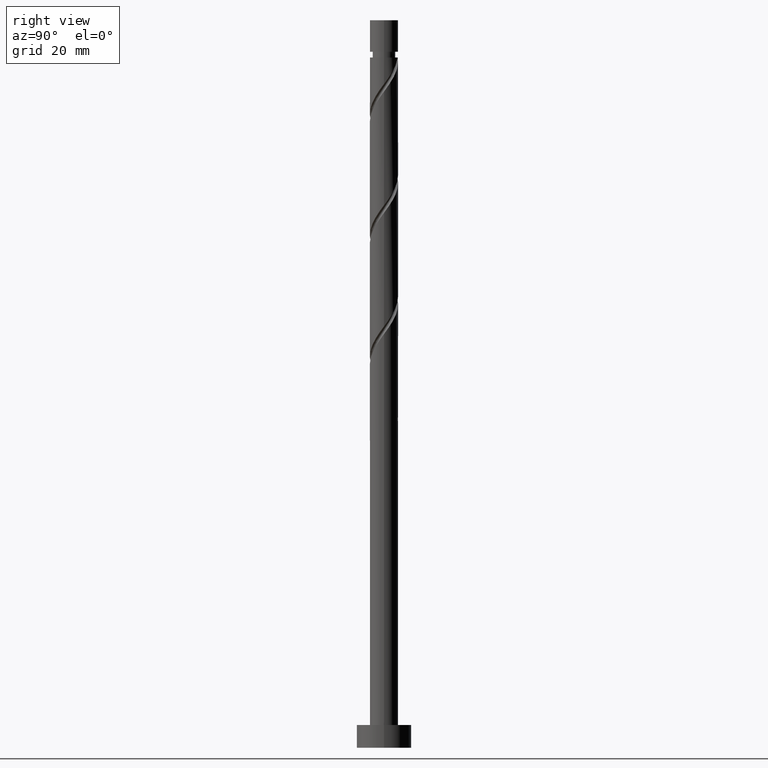
[diagram: clean part render]
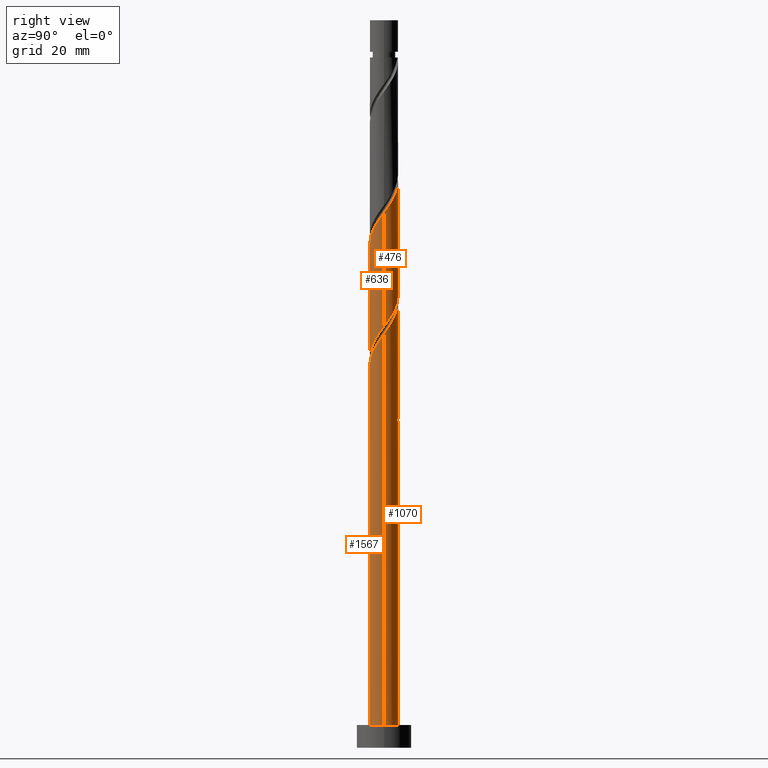
[diagram: same view with one multi-face feature highlighted, each face labeled with its STEP entity id]
A machine part, right view. The highlighted faces form ONE feature: a constant-radius fillet chain: 4 tangent blend faces with common blend radius 3.1 mm. The faces share edges in the B-rep.
Their STEP definitions:
[1] entity #1070 (Cylinder):
#4 = CARTESIAN_POINT ( 'NONE',  ( -3.100000000000003642, -2.213609464117462443E-15, 104.3171911729504444 ) ) ;
#27 = AXIS2_PLACEMENT_3D ( 'NONE', #893, #369, #646 ) ;
#34 = VERTEX_POINT ( 'NONE', #565 ) ;
#55 = EDGE_CURVE ( 'NONE', #904, #1299, #1140, .T. ) ;
#90 = ORIENTED_EDGE ( 'NONE', *, *, #981, .T. ) ;
#93 = DIRECTION ( 'NONE',  ( 1.000000000000000000, 0.000000000000000000, 0.000000000000000000 ) ) ;
#122 = CARTESIAN_POINT ( 'NONE',  ( -0.6168922110061045849, 3.038000000000004253, 71.83331231891800428 ) ) ;
#137 = ORIENTED_EDGE ( 'NONE', *, *, #1374, .F. ) ;
#163 = VERTEX_POINT ( 'NONE', #303 ) ;
#166 = CARTESIAN_POINT ( 'NONE',  ( -0.2639997657463936109, 3.088738273743154572, 73.04543353103920822 ) ) ;
#189 = CARTESIAN_POINT ( 'NONE',  ( -1.053690668162834632, 2.949304290322759314, 99.10603959164527055 ) ) ;
#212 = ORIENTED_EDGE ( 'NONE', *, *, #857, .F. ) ;
#228 = CARTESIAN_POINT ( 'NONE',  ( -1.447807249622134584, 2.741141033938534477, 99.71210019770589383 ) ) ;
#244 = CARTESIAN_POINT ( 'NONE',  ( -3.099999999999998757, 0.08920413222385151220, 79.22733546016732475 ) ) ;
#258 = CARTESIAN_POINT ( 'NONE',  ( -3.099999999999998757, 3.140932347734256892E-15, 79.34943346488556415 ) ) ;
#260 = VERTEX_POINT ( 'NONE', #1001 ) ;
#263 = CARTESIAN_POINT ( 'NONE',  ( -2.507195716031161759, 1.823175702315874558, 76.68179716740284846 ) ) ;
#285 = EDGE_LOOP ( 'NONE', ( #1529, #90, #321, #137, #1539, #1275, #1155, #212 ) ) ;
#289 = CARTESIAN_POINT ( 'NONE',  ( -1.123504051545180626, 2.889245341981458992, 74.25755474316044058 ) ) ;
#303 = CARTESIAN_POINT ( 'NONE',  ( 3.100000000000003642, 2.108911719192988068E-15, 90.98385783961710160 ) ) ;
#321 = ORIENTED_EDGE ( 'NONE', *, *, #1231, .T. ) ;
#332 = CARTESIAN_POINT ( 'NONE',  ( -2.480935279548630579, 1.911444469447290295, 101.5302820158876926 ) ) ;
#352 = CARTESIAN_POINT ( 'NONE',  ( 2.507195716031167976, 1.823175702315876334, 93.65149413709981729 ) ) ;
#369 = DIRECTION ( 'NONE',  ( 0.000000000000000000, -0.000000000000000000, -1.000000000000000000 ) ) ;
#406 = DIRECTION ( 'NONE',  ( -0.000000000000000000, -0.000000000000000000, -1.000000000000000000 ) ) ;
#438 = CARTESIAN_POINT ( 'NONE',  ( -2.699945692952827603, 1.523250883835457481, 102.1363426219482875 ) ) ;
#446 = VECTOR ( 'NONE', #406, 1000.000000000000000 ) ;
#449 = CARTESIAN_POINT ( 'NONE',  ( -3.019728287742894146, 0.7008859166835883503, 103.3484638340695199 ) ) ;
#461 = CARTESIAN_POINT ( 'NONE',  ( 3.100000000000004086, 0.08920413222384511454, 91.10595584433531258 ) ) ;
#522 = DIRECTION ( 'NONE',  ( -0.000000000000000000, -0.000000000000000000, -1.000000000000000000 ) ) ;
#540 =( BOUNDED_CURVE ( )  B_SPLINE_CURVE ( 2, ( #1210, #461, #1505, #1356, #713, #1605, #352, #1219, #1614, #958, #1105, #873, #968, #1345, #1388, #189, #228, #582, #1487, #332, #438, #851, #449, #1232, #729 ),
 .UNSPECIFIED., .F., .T. ) 
 B_SPLINE_CURVE_WITH_KNOTS ( ( 3, 2, 2, 2, 2, 2, 2, 2, 2, 2, 2, 2, 3 ),
 ( 0.1795252162417511899, 0.1818181818181817677, 0.1931818181818182323, 0.2045454545454545858, 0.2159090909090909394, 0.2272727272727272929, 0.2386363636363636465, 0.2500000000000000000, 0.2613636363636363535, 0.2727272727272727071, 0.2840909090909090606, 0.2954545454545454142, 0.3045252162417514397 ),
 .UNSPECIFIED. ) 
 CURVE ( )  GEOMETRIC_REPRESENTATION_ITEM ( )  RATIONAL_B_SPLINE_CURVE ( ( 0.9061101570135631222, 0.9072237824201452305, 0.9090909090909228274, 0.8998376744372251768, 0.9090909090909228274, 0.8998376744372251768, 0.9090909090909228274, 0.8998376744372251768, 0.9090909090909228274, 0.8998376744372251768, 0.9090909090909228274, 0.8998376744372251768, 0.9090909090909228274, 0.8998376744372251768, 0.9090909090909228274, 0.8998376744372251768, 0.9090909090909228274, 0.8998376744372251768, 0.9090909090909228274, 0.8998376744372251768, 0.9090909090909228274, 0.8998376744372251768, 0.9090909090909228274, 0.9017048011080025516, 0.9061101570135633443 ) ) 
 REPRESENTATION_ITEM ( '' )  );
#565 = CARTESIAN_POINT ( 'NONE',  ( -3.100000000000000089, 0.000000000000000000, 5.000000000000000000 ) ) ;
#570 = CARTESIAN_POINT ( 'NONE',  ( -2.918956106357024627, 1.135057298223623778, 76.07573656134222517 ) ) ;
#582 = CARTESIAN_POINT ( 'NONE',  ( -1.841923831081434093, 2.532977777554309640, 100.3181608037664887 ) ) ;
#638 = CARTESIAN_POINT ( 'NONE',  ( 0.6168922110061056951, 3.037999999999998924, 71.83331231891800428 ) ) ;
#646 = DIRECTION ( 'NONE',  ( -1.000000000000000000, 0.000000000000000000, 0.000000000000000000 ) ) ;
#649 = EDGE_CURVE ( 'NONE', #163, #962, #540, .T. ) ;
#682 = CARTESIAN_POINT ( 'NONE',  ( -1.891988720823648551, 2.455682935616096518, 75.46967595528161610 ) ) ;
#684 = LINE ( 'NONE', #807, #1261 ) ;
#692 = CARTESIAN_POINT ( 'NONE',  ( -2.161429555315031781, 2.222211123500800412, 74.25755474316044058 ) ) ;
#698 = CARTESIAN_POINT ( 'NONE',  ( -3.100000000000003642, -2.213609464117462443E-15, 77.65052450628378722 ) ) ;
#704 = CARTESIAN_POINT ( 'NONE',  ( -3.019728287742894146, 0.7008859166835883503, 76.68179716740284846 ) ) ;
#711 =( BOUNDED_CURVE ( )  B_SPLINE_CURVE ( 2, ( #1532, #244, #1272, #1413, #900, #774, #263, #780, #682, #1050, #289, #943, #166, #1574, #1311 ),
 .UNSPECIFIED., .F., .T. ) 
 B_SPLINE_CURVE_WITH_KNOTS ( ( 3, 2, 2, 2, 2, 2, 2, 3 ),
 ( 0.9295252162417513286, 0.9318181818181817677, 0.9431818181818182323, 0.9545454545454545858, 0.9659090909090909394, 0.9772727272727272929, 0.9886363636363636465, 1.000000000000000000 ),
 .UNSPECIFIED. ) 
 CURVE ( )  GEOMETRIC_REPRESENTATION_ITEM ( )  RATIONAL_B_SPLINE_CURVE ( ( 0.9061101570135575711, 0.9072237824201396794, 0.9090909090909171653, 0.8998376744372194036, 0.9090909090909171653, 0.8998376744372194036, 0.9090909090909171653, 0.8998376744372194036, 0.9090909090909171653, 0.8998376744372194036, 0.9090909090909171653, 0.8998376744372194036, 0.9090909090909171653, 0.8998376744372194036, 0.9090909090909171653 ) ) 
 REPRESENTATION_ITEM ( '' )  );
#713 = CARTESIAN_POINT ( 'NONE',  ( 2.919284625192895000, 1.042965616457419697, 92.43937292497859914 ) ) ;
#729 = CARTESIAN_POINT ( 'NONE',  ( -3.100000000000004086, -2.213609464117462838E-15, 104.3171911729504444 ) ) ;
#759 = CIRCLE ( 'NONE', #27, 3.100000000000000089 ) ;
#774 = CARTESIAN_POINT ( 'NONE',  ( -2.769328808163226796, 1.462695379553408781, 77.28785777346345753 ) ) ;
#780 = CARTESIAN_POINT ( 'NONE',  ( -2.245062623899099830, 2.183656025078340779, 76.07573656134222517 ) ) ;
#807 = CARTESIAN_POINT ( 'NONE',  ( 3.100000000000000089, 3.796405077356794918E-16, 160.0000000000000000 ) ) ;
#829 = FACE_OUTER_BOUND ( 'NONE', #285, .T. ) ;
#851 = CARTESIAN_POINT ( 'NONE',  ( -2.918956106357024627, 1.135057298223623778, 102.7424032280088966 ) ) ;
#857 = EDGE_CURVE ( 'NONE', #962, #884, #1519, .T. ) ;
#873 = CARTESIAN_POINT ( 'NONE',  ( 0.7080932853421649797, 3.050780837809070611, 96.68179716740283425 ) ) ;
#881 = CARTESIAN_POINT ( 'NONE',  ( 0.000000000000000000, 0.000000000000000000, 5.000000000000000000 ) ) ;
#884 = VERTEX_POINT ( 'NONE', #258 ) ;
#893 = CARTESIAN_POINT ( 'NONE',  ( 0.000000000000000000, 0.000000000000000000, 71.83331231891800428 ) ) ;
#896 = CARTESIAN_POINT ( 'NONE',  ( -3.100000000000000089, 0.000000000000000000, 160.0000000000000000 ) ) ;
#900 = CARTESIAN_POINT ( 'NONE',  ( -2.919284625192889671, 1.042965616457419253, 77.89391837952405240 ) ) ;
#904 = VERTEX_POINT ( 'NONE', #122 ) ;
#943 = CARTESIAN_POINT ( 'NONE',  ( -0.7080932853421633144, 3.050780837809067059, 73.65149413709981729 ) ) ;
#958 = CARTESIAN_POINT ( 'NONE',  ( 1.538914817748200381, 2.727709846153857143, 95.46967595528161610 ) ) ;
#962 = VERTEX_POINT ( 'NONE', #4 ) ;
#968 = CARTESIAN_POINT ( 'NONE',  ( 0.2639997657463947767, 3.088738273743159457, 97.28785777346347174 ) ) ;
#981 = EDGE_CURVE ( 'NONE', #163, #260, #684, .T. ) ;
#1001 = CARTESIAN_POINT ( 'NONE',  ( 3.100000000000000089, 3.796405077356794918E-16, 5.000000000000000000 ) ) ;
#1005 = CARTESIAN_POINT ( 'NONE',  ( -3.100000000000003642, -2.213609464117462443E-15, 77.65052450628378722 ) ) ;
#1026 = CARTESIAN_POINT ( 'NONE',  ( 0.000000000000000000, 0.000000000000000000, 160.0000000000000000 ) ) ;
#1050 = CARTESIAN_POINT ( 'NONE',  ( -1.538914817748199271, 2.727709846153853590, 74.86361534922103544 ) ) ;
#1069 = CIRCLE ( 'NONE', #1185, 3.100000000000000089 ) ;
#1070 = ADVANCED_FACE ( 'NONE', ( #829 ), #1577, .T. ) ;
#1090 = VECTOR ( 'NONE', #1417, 1000.000000000000000 ) ;
#1105 = CARTESIAN_POINT ( 'NONE',  ( 1.123504051545182847, 2.889245341981463433, 96.07573656134223938 ) ) ;
#1140 =( BOUNDED_CURVE ( )  B_SPLINE_CURVE ( 2, ( #1330, #1324, #1338, #1583, #692, #1194, #1205, #570, #704, #1188, #698 ),
 .UNSPECIFIED., .F., .T. ) 
 B_SPLINE_CURVE_WITH_KNOTS ( ( 3, 2, 2, 2, 2, 3 ),
 ( 0.000000000000000000, 0.01136363636363635354, 0.02272727272727270709, 0.03409090909090906063, 0.04545454545454541417, 0.05452521624175132864 ),
 .UNSPECIFIED. ) 
 CURVE ( )  GEOMETRIC_REPRESENTATION_ITEM ( )  RATIONAL_B_SPLINE_CURVE ( ( 0.9090909090909228274, 0.8998376744372251768, 0.9090909090909228274, 0.8998376744372251768, 0.9090909090909228274, 0.8998376744372251768, 0.9090909090909228274, 0.8998376744372251768, 0.9090909090909228274, 0.9017048011080026626, 0.9061101570135631222 ) ) 
 REPRESENTATION_ITEM ( '' )  );
#1155 = ORIENTED_EDGE ( 'NONE', *, *, #1465, .F. ) ;
#1170 = LINE ( 'NONE', #1558, #446 ) ;
#1185 = AXIS2_PLACEMENT_3D ( 'NONE', #881, #1504, #93 ) ;
#1188 = CARTESIAN_POINT ( 'NONE',  ( -3.100000000000004530, 0.3550396748938801639, 77.16456455331244513 ) ) ;
#1194 = CARTESIAN_POINT ( 'NONE',  ( -2.480935279548630579, 1.911444469447290295, 74.86361534922102123 ) ) ;
#1205 = CARTESIAN_POINT ( 'NONE',  ( -2.699945692952827603, 1.523250883835457481, 75.46967595528163031 ) ) ;
#1210 = CARTESIAN_POINT ( 'NONE',  ( 3.100000000000003642, 2.108911719192987674E-15, 90.98385783961710160 ) ) ;
#1219 = CARTESIAN_POINT ( 'NONE',  ( 2.245062623899103382, 2.183656025078341223, 94.25755474316041216 ) ) ;
#1231 = EDGE_CURVE ( 'NONE', #260, #34, #1069, .T. ) ;
#1232 = CARTESIAN_POINT ( 'NONE',  ( -3.100000000000005418, 0.3550396748938760005, 103.8312312199791450 ) ) ;
#1261 = VECTOR ( 'NONE', #522, 1000.000000000000000 ) ;
#1269 = VERTEX_POINT ( 'NONE', #638 ) ;
#1272 = CARTESIAN_POINT ( 'NONE',  ( -3.094870455675655663, 0.1782606591089396786, 79.10603959164527055 ) ) ;
#1275 = ORIENTED_EDGE ( 'NONE', *, *, #1455, .T. ) ;
#1299 = VERTEX_POINT ( 'NONE', #1005 ) ;
#1311 = CARTESIAN_POINT ( 'NONE',  ( 0.6168922110061056951, 3.037999999999998924, 71.83331231891801849 ) ) ;
#1324 = CARTESIAN_POINT ( 'NONE',  ( -1.053690668162834632, 2.949304290322759314, 72.43937292497864178 ) ) ;
#1330 = CARTESIAN_POINT ( 'NONE',  ( -0.6168922110061045849, 3.038000000000004253, 71.83331231891800428 ) ) ;
#1338 = CARTESIAN_POINT ( 'NONE',  ( -1.447807249622134584, 2.741141033938534477, 73.04543353103920822 ) ) ;
#1345 = CARTESIAN_POINT ( 'NONE',  ( -0.1800937538493752321, 3.126695709677248747, 97.89391837952408082 ) ) ;
#1356 = CARTESIAN_POINT ( 'NONE',  ( 3.069240442222557430, 0.6232358533614306140, 91.83331231891800428 ) ) ;
#1374 = EDGE_CURVE ( 'NONE', #1299, #34, #1170, .T. ) ;
#1388 = CARTESIAN_POINT ( 'NONE',  ( -0.6168922110061045849, 3.038000000000004253, 98.49997898558467568 ) ) ;
#1413 = CARTESIAN_POINT ( 'NONE',  ( -3.069240442222553433, 0.6232358533614308360, 78.49997898558464726 ) ) ;
#1417 = DIRECTION ( 'NONE',  ( -0.000000000000000000, -0.000000000000000000, -1.000000000000000000 ) ) ;
#1454 = DIRECTION ( 'NONE',  ( -1.000000000000000000, 0.000000000000000000, 0.000000000000000000 ) ) ;
#1455 = EDGE_CURVE ( 'NONE', #904, #1269, #759, .T. ) ;
#1465 = EDGE_CURVE ( 'NONE', #884, #1269, #711, .T. ) ;
#1487 = CARTESIAN_POINT ( 'NONE',  ( -2.161429555315031781, 2.222211123500800412, 100.9242214098271262 ) ) ;
#1504 = DIRECTION ( 'NONE',  ( 0.000000000000000000, 0.000000000000000000, 1.000000000000000000 ) ) ;
#1505 = CARTESIAN_POINT ( 'NONE',  ( 3.094870455675660548, 0.1782606591089387071, 91.22725171285738099 ) ) ;
#1519 = LINE ( 'NONE', #896, #1090 ) ;
#1529 = ORIENTED_EDGE ( 'NONE', *, *, #649, .F. ) ;
#1532 = CARTESIAN_POINT ( 'NONE',  ( -3.099999999999998757, 3.140932347734256892E-15, 79.34943346488556415 ) ) ;
#1539 = ORIENTED_EDGE ( 'NONE', *, *, #55, .F. ) ;
#1558 = CARTESIAN_POINT ( 'NONE',  ( -3.100000000000000089, 0.000000000000000000, 160.0000000000000000 ) ) ;
#1569 = DIRECTION ( 'NONE',  ( -0.000000000000000000, -0.000000000000000000, -1.000000000000000000 ) ) ;
#1574 = CARTESIAN_POINT ( 'NONE',  ( 0.1800937538493760093, 3.126695709677243862, 72.43937292497862757 ) ) ;
#1577 = CYLINDRICAL_SURFACE ( 'NONE', #1658, 3.100000000000000089 ) ;
#1583 = CARTESIAN_POINT ( 'NONE',  ( -1.841923831081434093, 2.532977777554309640, 73.65149413709980308 ) ) ;
#1605 = CARTESIAN_POINT ( 'NONE',  ( 2.769328808163231237, 1.462695379553409447, 93.04543353103920822 ) ) ;
#1614 = CARTESIAN_POINT ( 'NONE',  ( 1.891988720823650993, 2.455682935616100071, 94.86361534922104966 ) ) ;
#1658 = AXIS2_PLACEMENT_3D ( 'NONE', #1026, #1569, #1454 ) ;
[2] entity #1567 (Cylinder):
#34 = VERTEX_POINT ( 'NONE', #565 ) ;
#53 = AXIS2_PLACEMENT_3D ( 'NONE', #1223, #1489, #1081 ) ;
#142 = CARTESIAN_POINT ( 'NONE',  ( 2.918956106357024627, -1.135057298223622890, 89.40906989467561061 ) ) ;
#151 = CARTESIAN_POINT ( 'NONE',  ( 2.480935279548630135, -1.911444469447291183, 88.19694868255439246 ) ) ;
#152 =( BOUNDED_CURVE ( )  B_SPLINE_CURVE ( 2, ( #1344, #659, #792, #315, #1061, #934, #1315, #1044, #903, #1053, #284, #555, #410, #1552, #168, #1544, #926, #1290, #422, #151, #1439, #142, #400, #267, #1422 ),
 .UNSPECIFIED., .F., .T. ) 
 B_SPLINE_CURVE_WITH_KNOTS ( ( 3, 2, 2, 2, 2, 2, 2, 2, 2, 2, 2, 2, 3 ),
 ( 0.05452521624175132864, 0.05681818181818176772, 0.06818181818181823228, 0.07954545454545458583, 0.09090909090909093937, 0.1022727272727272929, 0.1136363636363636465, 0.1250000000000000000, 0.1363636363636363535, 0.1477272727272727071, 0.1590909090909090606, 0.1704545454545454142, 0.1795252162417511899 ),
 .UNSPECIFIED. ) 
 CURVE ( )  GEOMETRIC_REPRESENTATION_ITEM ( )  RATIONAL_B_SPLINE_CURVE ( ( 0.9061101570135631222, 0.9072237824201453416, 0.9090909090909228274, 0.8998376744372251768, 0.9090909090909228274, 0.8998376744372251768, 0.9090909090909228274, 0.8998376744372251768, 0.9090909090909228274, 0.8998376744372251768, 0.9090909090909228274, 0.8998376744372251768, 0.9090909090909228274, 0.8998376744372251768, 0.9090909090909228274, 0.8998376744372251768, 0.9090909090909228274, 0.8998376744372251768, 0.9090909090909228274, 0.8998376744372251768, 0.9090909090909228274, 0.8998376744372251768, 0.9090909090909228274, 0.9017048011080027736, 0.9061101570135631222 ) ) 
 REPRESENTATION_ITEM ( '' )  );
#163 = VERTEX_POINT ( 'NONE', #303 ) ;
#168 = CARTESIAN_POINT ( 'NONE',  ( 0.6168922110061050290, -3.038000000000004253, 85.16664565225133288 ) ) ;
#180 = CARTESIAN_POINT ( 'NONE',  ( 0.000000000000000000, 0.000000000000000000, 160.0000000000000000 ) ) ;
#260 = VERTEX_POINT ( 'NONE', #1001 ) ;
#267 = CARTESIAN_POINT ( 'NONE',  ( 3.100000000000003642, -0.3550396748938855485, 90.49789788664580215 ) ) ;
#284 = CARTESIAN_POINT ( 'NONE',  ( -1.123504051545183957, -2.889245341981462989, 82.74240322800892500 ) ) ;
#301 = FACE_OUTER_BOUND ( 'NONE', #626, .T. ) ;
#303 = CARTESIAN_POINT ( 'NONE',  ( 3.100000000000003642, 2.108911719192988068E-15, 90.98385783961710160 ) ) ;
#315 = CARTESIAN_POINT ( 'NONE',  ( -3.069240442222557430, -0.6232358533614309470, 78.49997898558466147 ) ) ;
#400 = CARTESIAN_POINT ( 'NONE',  ( 3.019728287742894146, -0.7008859166835881283, 90.01513050073617705 ) ) ;
#406 = DIRECTION ( 'NONE',  ( -0.000000000000000000, -0.000000000000000000, -1.000000000000000000 ) ) ;
#410 = CARTESIAN_POINT ( 'NONE',  ( -0.2639997657463944436, -3.088738273743159457, 83.95452444013012894 ) ) ;
#422 = CARTESIAN_POINT ( 'NONE',  ( 2.161429555315031781, -2.222211123500800412, 87.59088807649375497 ) ) ;
#440 = AXIS2_PLACEMENT_3D ( 'NONE', #180, #1565, #1058 ) ;
#446 = VECTOR ( 'NONE', #406, 1000.000000000000000 ) ;
#522 = DIRECTION ( 'NONE',  ( -0.000000000000000000, -0.000000000000000000, -1.000000000000000000 ) ) ;
#532 = ORIENTED_EDGE ( 'NONE', *, *, #1027, .F. ) ;
#555 = CARTESIAN_POINT ( 'NONE',  ( -0.7080932853421646467, -3.050780837809071055, 83.34846383406951986 ) ) ;
#565 = CARTESIAN_POINT ( 'NONE',  ( -3.100000000000000089, 0.000000000000000000, 5.000000000000000000 ) ) ;
#626 = EDGE_LOOP ( 'NONE', ( #771, #532, #1599, #1520 ) ) ;
#659 = CARTESIAN_POINT ( 'NONE',  ( -3.100000000000003197, -0.08920413222385069341, 77.77262251100201240 ) ) ;
#684 = LINE ( 'NONE', #807, #1261 ) ;
#697 = EDGE_CURVE ( 'NONE', #34, #260, #1201, .T. ) ;
#771 = ORIENTED_EDGE ( 'NONE', *, *, #981, .F. ) ;
#792 = CARTESIAN_POINT ( 'NONE',  ( -3.094870455675660548, -0.1782606591089389569, 77.89391837952406661 ) ) ;
#807 = CARTESIAN_POINT ( 'NONE',  ( 3.100000000000000089, 3.796405077356794918E-16, 160.0000000000000000 ) ) ;
#903 = CARTESIAN_POINT ( 'NONE',  ( -1.891988720823651660, -2.455682935616100071, 81.53028201588772106 ) ) ;
#926 = CARTESIAN_POINT ( 'NONE',  ( 1.447807249622134362, -2.741141033938534477, 86.37876686437252260 ) ) ;
#934 = CARTESIAN_POINT ( 'NONE',  ( -2.769328808163231237, -1.462695379553410557, 79.71210019770586541 ) ) ;
#981 = EDGE_CURVE ( 'NONE', #163, #260, #684, .T. ) ;
#1001 = CARTESIAN_POINT ( 'NONE',  ( 3.100000000000000089, 3.796405077356794918E-16, 5.000000000000000000 ) ) ;
#1005 = CARTESIAN_POINT ( 'NONE',  ( -3.100000000000003642, -2.213609464117462443E-15, 77.65052450628378722 ) ) ;
#1027 = EDGE_CURVE ( 'NONE', #1299, #163, #152, .T. ) ;
#1044 = CARTESIAN_POINT ( 'NONE',  ( -2.245062623899102938, -2.183656025078342555, 80.92422140982711198 ) ) ;
#1053 = CARTESIAN_POINT ( 'NONE',  ( -1.538914817748201713, -2.727709846153856699, 82.13634262194828750 ) ) ;
#1058 = DIRECTION ( 'NONE',  ( -1.000000000000000000, 0.000000000000000000, 0.000000000000000000 ) ) ;
#1061 = CARTESIAN_POINT ( 'NONE',  ( -2.919284625192894556, -1.042965616457420364, 79.10603959164527055 ) ) ;
#1081 = DIRECTION ( 'NONE',  ( 1.000000000000000000, 0.000000000000000000, 0.000000000000000000 ) ) ;
#1170 = LINE ( 'NONE', #1558, #446 ) ;
#1201 = CIRCLE ( 'NONE', #53, 3.100000000000000089 ) ;
#1204 = CYLINDRICAL_SURFACE ( 'NONE', #440, 3.100000000000000089 ) ;
#1223 = CARTESIAN_POINT ( 'NONE',  ( 0.000000000000000000, 0.000000000000000000, 5.000000000000000000 ) ) ;
#1261 = VECTOR ( 'NONE', #522, 1000.000000000000000 ) ;
#1290 = CARTESIAN_POINT ( 'NONE',  ( 1.841923831081434537, -2.532977777554308751, 86.98482747043314589 ) ) ;
#1299 = VERTEX_POINT ( 'NONE', #1005 ) ;
#1315 = CARTESIAN_POINT ( 'NONE',  ( -2.507195716031167532, -1.823175702315877000, 80.31816080376650291 ) ) ;
#1344 = CARTESIAN_POINT ( 'NONE',  ( -3.100000000000003642, -2.213609464117462443E-15, 77.65052450628378722 ) ) ;
#1374 = EDGE_CURVE ( 'NONE', #1299, #34, #1170, .T. ) ;
#1422 = CARTESIAN_POINT ( 'NONE',  ( 3.100000000000003642, 2.108911719192987674E-15, 90.98385783961710160 ) ) ;
#1439 = CARTESIAN_POINT ( 'NONE',  ( 2.699945692952827159, -1.523250883835457703, 88.80300928861497312 ) ) ;
#1489 = DIRECTION ( 'NONE',  ( 0.000000000000000000, 0.000000000000000000, 1.000000000000000000 ) ) ;
#1520 = ORIENTED_EDGE ( 'NONE', *, *, #697, .T. ) ;
#1544 = CARTESIAN_POINT ( 'NONE',  ( 1.053690668162833965, -2.949304290322760647, 85.77270625831195616 ) ) ;
#1552 = CARTESIAN_POINT ( 'NONE',  ( 0.1800937538493756762, -3.126695709677248747, 84.56058504619073801 ) ) ;
#1558 = CARTESIAN_POINT ( 'NONE',  ( -3.100000000000000089, 0.000000000000000000, 160.0000000000000000 ) ) ;
#1565 = DIRECTION ( 'NONE',  ( -0.000000000000000000, -0.000000000000000000, -1.000000000000000000 ) ) ;
#1567 = ADVANCED_FACE ( 'NONE', ( #301 ), #1204, .T. ) ;
#1599 = ORIENTED_EDGE ( 'NONE', *, *, #1374, .T. ) ;
[3] entity #636 (Cylinder):
#4 = CARTESIAN_POINT ( 'NONE',  ( -3.100000000000003642, -2.213609464117462443E-15, 104.3171911729504444 ) ) ;
#22 = CARTESIAN_POINT ( 'NONE',  ( 3.100000000000003642, -0.3550396748938844937, 117.1645645533124735 ) ) ;
#23 =( BOUNDED_CURVE ( )  B_SPLINE_CURVE ( 2, ( #381, #895, #1278, #1033, #62, #1314, #1080, #1594, #160, #683, #1192, #40, #1473, #1244, #1633, #590, #950, #1366, #609, #317, #1118, #1624, #840, #1256, #599 ),
 .UNSPECIFIED., .F., .T. ) 
 B_SPLINE_CURVE_WITH_KNOTS ( ( 3, 2, 2, 2, 2, 2, 2, 2, 2, 2, 2, 2, 3 ),
 ( 0.8045252162417515507, 0.8068181818181817677, 0.8181818181818182323, 0.8295454545454545858, 0.8409090909090909394, 0.8522727272727272929, 0.8636363636363636465, 0.8750000000000000000, 0.8863636363636363535, 0.8977272727272727071, 0.9090909090909090606, 0.9204545454545454142, 0.9295252162417513286 ),
 .UNSPECIFIED. ) 
 CURVE ( )  GEOMETRIC_REPRESENTATION_ITEM ( )  RATIONAL_B_SPLINE_CURVE ( ( 0.9061101570135577932, 0.9072237824201399015, 0.9090909090909171653, 0.8998376744372194036, 0.9090909090909171653, 0.8998376744372194036, 0.9090909090909171653, 0.8998376744372194036, 0.9090909090909171653, 0.8998376744372194036, 0.9090909090909171653, 0.8998376744372194036, 0.9090909090909171653, 0.8998376744372194036, 0.9090909090909171653, 0.8998376744372194036, 0.9090909090909171653, 0.8998376744372194036, 0.9090909090909171653, 0.8998376744372194036, 0.9090909090909171653, 0.8998376744372194036, 0.9090909090909171653, 0.9017048011079968894, 0.9061101570135575711 ) ) 
 REPRESENTATION_ITEM ( '' )  );
#40 = CARTESIAN_POINT ( 'NONE',  ( 0.7080932853421639805, -3.050780837809066171, 86.98482747043314589 ) ) ;
#62 = CARTESIAN_POINT ( 'NONE',  ( 2.919284625192889671, -1.042965616457419475, 91.22725171285740942 ) ) ;
#87 = DIRECTION ( 'NONE',  ( -0.000000000000000000, -0.000000000000000000, -1.000000000000000000 ) ) ;
#118 = CARTESIAN_POINT ( 'NONE',  ( -0.7080932853421646467, -3.050780837809071055, 110.0151305007361913 ) ) ;
#126 = CARTESIAN_POINT ( 'NONE',  ( -2.245062623899102938, -2.183656025078342555, 107.5908880764937550 ) ) ;
#133 = LINE ( 'NONE', #536, #806 ) ;
#139 = CARTESIAN_POINT ( 'NONE',  ( -1.538914817748201713, -2.727709846153856699, 108.8030092886149589 ) ) ;
#160 = CARTESIAN_POINT ( 'NONE',  ( 1.891988720823647885, -2.455682935616096518, 88.80300928861494469 ) ) ;
#254 = CARTESIAN_POINT ( 'NONE',  ( -3.069240442222557430, -0.6232358533614309470, 105.1666456522513187 ) ) ;
#258 = CARTESIAN_POINT ( 'NONE',  ( -3.099999999999998757, 3.140932347734256892E-15, 79.34943346488556415 ) ) ;
#273 = CARTESIAN_POINT ( 'NONE',  ( -2.919284625192894556, -1.042965616457420364, 105.7727062583119562 ) ) ;
#317 = CARTESIAN_POINT ( 'NONE',  ( -2.480935279548628358, -1.911444469447286743, 82.13634262194831592 ) ) ;
#381 = CARTESIAN_POINT ( 'NONE',  ( 3.099999999999998757, -3.769118817281108271E-15, 92.68276679821886432 ) ) ;
#456 = VERTEX_POINT ( 'NONE', #791 ) ;
#467 = ORIENTED_EDGE ( 'NONE', *, *, #1319, .F. ) ;
#483 =( BOUNDED_CURVE ( )  B_SPLINE_CURVE ( 2, ( #1031, #914, #1420, #254, #273, #520, #1277, #126, #666, #139, #1296, #118, #1285, #1427, #1160, #1663, #527, #906, #789, #656, #1022, #1177, #1151, #22, #1141 ),
 .UNSPECIFIED., .F., .T. ) 
 B_SPLINE_CURVE_WITH_KNOTS ( ( 3, 2, 2, 2, 2, 2, 2, 2, 2, 2, 2, 2, 3 ),
 ( 0.3045252162417514397, 0.3068181818181817677, 0.3181818181818182323, 0.3295454545454545858, 0.3409090909090909394, 0.3522727272727272929, 0.3636363636363636465, 0.3750000000000000000, 0.3863636363636363535, 0.3977272727272727071, 0.4090909090909090606, 0.4204545454545454142, 0.4295252162417512176 ),
 .UNSPECIFIED. ) 
 CURVE ( )  GEOMETRIC_REPRESENTATION_ITEM ( )  RATIONAL_B_SPLINE_CURVE ( ( 0.9061101570135633443, 0.9072237824201454526, 0.9090909090909228274, 0.8998376744372251768, 0.9090909090909228274, 0.8998376744372251768, 0.9090909090909228274, 0.8998376744372251768, 0.9090909090909228274, 0.8998376744372251768, 0.9090909090909228274, 0.8998376744372251768, 0.9090909090909228274, 0.8998376744372251768, 0.9090909090909228274, 0.8998376744372251768, 0.9090909090909228274, 0.8998376744372251768, 0.9090909090909228274, 0.8998376744372251768, 0.9090909090909228274, 0.8998376744372251768, 0.9090909090909228274, 0.9017048011080027736, 0.9061101570135631222 ) ) 
 REPRESENTATION_ITEM ( '' )  );
#520 = CARTESIAN_POINT ( 'NONE',  ( -2.769328808163231237, -1.462695379553410557, 106.3787668643725510 ) ) ;
#527 = CARTESIAN_POINT ( 'NONE',  ( 1.447807249622134362, -2.741141033938534477, 113.0454335310392082 ) ) ;
#536 = CARTESIAN_POINT ( 'NONE',  ( 3.100000000000000089, 3.796405077356794918E-16, 160.0000000000000000 ) ) ;
#578 = EDGE_CURVE ( 'NONE', #1410, #884, #23, .T. ) ;
#590 = CARTESIAN_POINT ( 'NONE',  ( -1.053690668162833521, -2.949304290322753985, 84.56058504619070959 ) ) ;
#599 = CARTESIAN_POINT ( 'NONE',  ( -3.099999999999998757, 3.140932347734256892E-15, 79.34943346488556415 ) ) ;
#609 = CARTESIAN_POINT ( 'NONE',  ( -2.161429555315030004, -2.222211123500796415, 82.74240322800892500 ) ) ;
#636 = ADVANCED_FACE ( 'NONE', ( #987 ), #831, .T. ) ;
#656 = CARTESIAN_POINT ( 'NONE',  ( 2.480935279548630135, -1.911444469447291183, 114.8636153492210354 ) ) ;
#666 = CARTESIAN_POINT ( 'NONE',  ( -1.891988720823651660, -2.455682935616100071, 108.1969486825543640 ) ) ;
#683 = CARTESIAN_POINT ( 'NONE',  ( 1.538914817748198605, -2.727709846153853590, 88.19694868255437825 ) ) ;
#786 = ORIENTED_EDGE ( 'NONE', *, *, #1346, .F. ) ;
#789 = CARTESIAN_POINT ( 'NONE',  ( 2.161429555315031781, -2.222211123500800412, 114.2575547431604406 ) ) ;
#791 = CARTESIAN_POINT ( 'NONE',  ( 3.100000000000003642, 2.108911719192988068E-15, 117.6505245062837872 ) ) ;
#806 = VECTOR ( 'NONE', #1041, 1000.000000000000000 ) ;
#831 = CYLINDRICAL_SURFACE ( 'NONE', #1336, 3.100000000000000089 ) ;
#840 = CARTESIAN_POINT ( 'NONE',  ( -3.019728287742889705, -0.7008859166835865739, 80.31816080376647449 ) ) ;
#857 = EDGE_CURVE ( 'NONE', #962, #884, #1519, .T. ) ;
#884 = VERTEX_POINT ( 'NONE', #258 ) ;
#895 = CARTESIAN_POINT ( 'NONE',  ( 3.099999999999998312, -0.08920413222386067154, 92.56066879350066756 ) ) ;
#896 = CARTESIAN_POINT ( 'NONE',  ( -3.100000000000000089, 0.000000000000000000, 160.0000000000000000 ) ) ;
#906 = CARTESIAN_POINT ( 'NONE',  ( 1.841923831081434537, -2.532977777554308751, 113.6514941370998315 ) ) ;
#914 = CARTESIAN_POINT ( 'NONE',  ( -3.100000000000003642, -0.08920413222385500940, 104.4392891776686696 ) ) ;
#950 = CARTESIAN_POINT ( 'NONE',  ( -1.447807249622132586, -2.741141033938529592, 83.95452444013011473 ) ) ;
#962 = VERTEX_POINT ( 'NONE', #4 ) ;
#987 = FACE_OUTER_BOUND ( 'NONE', #1019, .T. ) ;
#1014 = CARTESIAN_POINT ( 'NONE',  ( 3.099999999999998757, -3.769118817281108271E-15, 92.68276679821886432 ) ) ;
#1019 = EDGE_LOOP ( 'NONE', ( #786, #467, #1250, #1550 ) ) ;
#1022 = CARTESIAN_POINT ( 'NONE',  ( 2.699945692952827159, -1.523250883835457703, 115.4696759552816445 ) ) ;
#1031 = CARTESIAN_POINT ( 'NONE',  ( -3.100000000000004086, -2.213609464117462838E-15, 104.3171911729504444 ) ) ;
#1033 = CARTESIAN_POINT ( 'NONE',  ( 3.069240442222553433, -0.6232358533614312801, 91.83331231891800428 ) ) ;
#1041 = DIRECTION ( 'NONE',  ( -0.000000000000000000, -0.000000000000000000, -1.000000000000000000 ) ) ;
#1080 = CARTESIAN_POINT ( 'NONE',  ( 2.507195716031162203, -1.823175702315874558, 90.01513050073617705 ) ) ;
#1090 = VECTOR ( 'NONE', #1417, 1000.000000000000000 ) ;
#1097 = DIRECTION ( 'NONE',  ( -1.000000000000000000, 0.000000000000000000, 0.000000000000000000 ) ) ;
#1118 = CARTESIAN_POINT ( 'NONE',  ( -2.699945692952823606, -1.523250883835454372, 81.53028201588770685 ) ) ;
#1141 = CARTESIAN_POINT ( 'NONE',  ( 3.100000000000003642, 2.108911719192987674E-15, 117.6505245062837872 ) ) ;
#1151 = CARTESIAN_POINT ( 'NONE',  ( 3.019728287742894146, -0.7008859166835881283, 116.6817971674028769 ) ) ;
#1160 = CARTESIAN_POINT ( 'NONE',  ( 0.6168922110061050290, -3.038000000000004253, 111.8333123189179759 ) ) ;
#1177 = CARTESIAN_POINT ( 'NONE',  ( 2.918956106357024627, -1.135057298223622890, 116.0757365613422536 ) ) ;
#1192 = CARTESIAN_POINT ( 'NONE',  ( 1.123504051545180626, -2.889245341981458992, 87.59088807649375497 ) ) ;
#1244 = CARTESIAN_POINT ( 'NONE',  ( -0.1800937538493767587, -3.126695709677244750, 85.77270625831194195 ) ) ;
#1250 = ORIENTED_EDGE ( 'NONE', *, *, #857, .T. ) ;
#1256 = CARTESIAN_POINT ( 'NONE',  ( -3.099999999999999645, -0.3550396748938789981, 79.83539341785684940 ) ) ;
#1277 = CARTESIAN_POINT ( 'NONE',  ( -2.507195716031167532, -1.823175702315877000, 106.9848274704331601 ) ) ;
#1278 = CARTESIAN_POINT ( 'NONE',  ( 3.094870455675655663, -0.1782606591089400394, 92.43937292497862757 ) ) ;
#1285 = CARTESIAN_POINT ( 'NONE',  ( -0.2639997657463944436, -3.088738273743159457, 110.6211911067968146 ) ) ;
#1296 = CARTESIAN_POINT ( 'NONE',  ( -1.123504051545183957, -2.889245341981462989, 109.4090698946755964 ) ) ;
#1314 = CARTESIAN_POINT ( 'NONE',  ( 2.769328808163226796, -1.462695379553408781, 90.62119110679678613 ) ) ;
#1319 = EDGE_CURVE ( 'NONE', #962, #456, #483, .T. ) ;
#1336 = AXIS2_PLACEMENT_3D ( 'NONE', #1480, #87, #1097 ) ;
#1346 = EDGE_CURVE ( 'NONE', #456, #1410, #133, .T. ) ;
#1366 = CARTESIAN_POINT ( 'NONE',  ( -1.841923831081431651, -2.532977777554305199, 83.34846383406950565 ) ) ;
#1410 = VERTEX_POINT ( 'NONE', #1014 ) ;
#1417 = DIRECTION ( 'NONE',  ( -0.000000000000000000, -0.000000000000000000, -1.000000000000000000 ) ) ;
#1420 = CARTESIAN_POINT ( 'NONE',  ( -3.094870455675660548, -0.1782606591089389569, 104.5605850461907238 ) ) ;
#1427 = CARTESIAN_POINT ( 'NONE',  ( 0.1800937538493756762, -3.126695709677248747, 111.2272517128574094 ) ) ;
#1473 = CARTESIAN_POINT ( 'NONE',  ( 0.2639997657463926117, -3.088738273743155016, 86.37876686437255103 ) ) ;
#1480 = CARTESIAN_POINT ( 'NONE',  ( 0.000000000000000000, 0.000000000000000000, 160.0000000000000000 ) ) ;
#1519 = LINE ( 'NONE', #896, #1090 ) ;
#1550 = ORIENTED_EDGE ( 'NONE', *, *, #578, .F. ) ;
#1594 = CARTESIAN_POINT ( 'NONE',  ( 2.245062623899099830, -2.183656025078340335, 89.40906989467561061 ) ) ;
#1624 = CARTESIAN_POINT ( 'NONE',  ( -2.918956106357020186, -1.135057298223621114, 80.92422140982709777 ) ) ;
#1633 = CARTESIAN_POINT ( 'NONE',  ( -0.6168922110061053621, -3.037999999999999368, 85.16664565225130445 ) ) ;
#1663 = CARTESIAN_POINT ( 'NONE',  ( 1.053690668162833965, -2.949304290322760647, 112.4393729249786134 ) ) ;
[4] entity #476 (Cylinder):
#2 = CARTESIAN_POINT ( 'NONE',  ( -2.918956106357024627, 1.135057298223623778, 129.4090698946755822 ) ) ;
#14 = DIRECTION ( 'NONE',  ( -1.000000000000000000, 0.000000000000000000, 0.000000000000000000 ) ) ;
#58 = CARTESIAN_POINT ( 'NONE',  ( -1.891988720823648551, 2.455682935616096518, 102.1363426219482733 ) ) ;
#101 = ORIENTED_EDGE ( 'NONE', *, *, #798, .F. ) ;
#120 = CARTESIAN_POINT ( 'NONE',  ( -1.053690668162834632, 2.949304290322759314, 125.7727062583119420 ) ) ;
#133 = LINE ( 'NONE', #536, #806 ) ;
#173 = CARTESIAN_POINT ( 'NONE',  ( -0.2639997657463936109, 3.088738273743154572, 99.71210019770589383 ) ) ;
#246 = FACE_OUTER_BOUND ( 'NONE', #1202, .T. ) ;
#265 = CARTESIAN_POINT ( 'NONE',  ( -1.841923831081434093, 2.532977777554309640, 126.9848274704331317 ) ) ;
#297 = CARTESIAN_POINT ( 'NONE',  ( 1.841923831081431873, 2.532977777554304755, 96.68179716740287688 ) ) ;
#306 = CARTESIAN_POINT ( 'NONE',  ( -3.099999999999998757, 3.140932347734256892E-15, 106.0161001315522213 ) ) ;
#327 = ORIENTED_EDGE ( 'NONE', *, *, #691, .F. ) ;
#376 = ORIENTED_EDGE ( 'NONE', *, *, #1346, .T. ) ;
#397 = CARTESIAN_POINT ( 'NONE',  ( 3.069240442222557430, 0.6232358533614306140, 118.4999789855846473 ) ) ;
#408 = CARTESIAN_POINT ( 'NONE',  ( 2.769328808163231237, 1.462695379553409447, 119.7121001977058938 ) ) ;
#415 = CARTESIAN_POINT ( 'NONE',  ( 1.447807249622133030, 2.741141033938529592, 97.28785777346347174 ) ) ;
#433 = CARTESIAN_POINT ( 'NONE',  ( -2.507195716031161759, 1.823175702315874558, 103.3484638340695057 ) ) ;
#436 = CARTESIAN_POINT ( 'NONE',  ( 2.699945692952822718, 1.523250883835454816, 94.86361534922103544 ) ) ;
#453 = CARTESIAN_POINT ( 'NONE',  ( -3.100000000000000089, 0.000000000000000000, 160.0000000000000000 ) ) ;
#456 = VERTEX_POINT ( 'NONE', #791 ) ;
#476 = ADVANCED_FACE ( 'NONE', ( #246 ), #776, .T. ) ;
#505 = CARTESIAN_POINT ( 'NONE',  ( -3.019728287742894146, 0.7008859166835883503, 130.0151305007361771 ) ) ;
#513 = CARTESIAN_POINT ( 'NONE',  ( 1.538914817748200381, 2.727709846153857143, 122.1363426219483017 ) ) ;
#536 = CARTESIAN_POINT ( 'NONE',  ( 3.100000000000000089, 3.796405077356794918E-16, 160.0000000000000000 ) ) ;
#544 = CARTESIAN_POINT ( 'NONE',  ( 2.161429555315029116, 2.222211123500796859, 96.07573656134223938 ) ) ;
#564 = CARTESIAN_POINT ( 'NONE',  ( 3.100000000000004086, 0.08920413222384618313, 117.7726225110020124 ) ) ;
#592 = LINE ( 'NONE', #453, #1125 ) ;
#631 = CARTESIAN_POINT ( 'NONE',  ( -2.699945692952827603, 1.523250883835457481, 128.8030092886149873 ) ) ;
#651 = CARTESIAN_POINT ( 'NONE',  ( -2.161429555315031781, 2.222211123500800412, 127.5908880764937408 ) ) ;
#691 = EDGE_CURVE ( 'NONE', #1611, #1036, #592, .T. ) ;
#701 = CARTESIAN_POINT ( 'NONE',  ( 0.1800937538493760093, 3.126695709677243862, 99.10603959164528476 ) ) ;
#763 = CARTESIAN_POINT ( 'NONE',  ( 1.891988720823650993, 2.455682935616100071, 121.5302820158876926 ) ) ;
#769 = CARTESIAN_POINT ( 'NONE',  ( 0.000000000000000000, 0.000000000000000000, 160.0000000000000000 ) ) ;
#775 = CARTESIAN_POINT ( 'NONE',  ( -1.447807249622134584, 2.741141033938534477, 126.3787668643725510 ) ) ;
#776 = CYLINDRICAL_SURFACE ( 'NONE', #1528, 3.100000000000000089 ) ;
#783 = CARTESIAN_POINT ( 'NONE',  ( -2.480935279548630579, 1.911444469447290295, 128.1969486825543640 ) ) ;
#790 = CARTESIAN_POINT ( 'NONE',  ( 2.919284625192895000, 1.042965616457419697, 119.1060395916452705 ) ) ;
#791 = CARTESIAN_POINT ( 'NONE',  ( 3.100000000000003642, 2.108911719192988068E-15, 117.6505245062837872 ) ) ;
#798 = EDGE_CURVE ( 'NONE', #456, #1611, #830, .T. ) ;
#806 = VECTOR ( 'NONE', #1041, 1000.000000000000000 ) ;
#817 = CARTESIAN_POINT ( 'NONE',  ( -3.094870455675655663, 0.1782606591089396786, 105.7727062583119420 ) ) ;
#830 =( BOUNDED_CURVE ( )  B_SPLINE_CURVE ( 2, ( #1257, #564, #1656, #397, #790, #408, #916, #1415, #763, #513, #1265, #1524, #1144, #1172, #1651, #120, #775, #265, #651, #783, #631, #2, #505, #1164, #1407 ),
 .UNSPECIFIED., .F., .T. ) 
 B_SPLINE_CURVE_WITH_KNOTS ( ( 3, 2, 2, 2, 2, 2, 2, 2, 2, 2, 2, 2, 3 ),
 ( 0.4295252162417512176, 0.4318181818181817677, 0.4431818181818182323, 0.4545454545454545858, 0.4659090909090909394, 0.4772727272727272929, 0.4886363636363636465, 0.5000000000000000000, 0.5113636363636363535, 0.5227272727272727071, 0.5340909090909091717, 0.5454545454545454142, 0.5545252162417514397 ),
 .UNSPECIFIED. ) 
 CURVE ( )  GEOMETRIC_REPRESENTATION_ITEM ( )  RATIONAL_B_SPLINE_CURVE ( ( 0.9061101570135631222, 0.9072237824201452305, 0.9090909090909228274, 0.8998376744372251768, 0.9090909090909228274, 0.8998376744372251768, 0.9090909090909228274, 0.8998376744372251768, 0.9090909090909228274, 0.8998376744372251768, 0.9090909090909228274, 0.8998376744372251768, 0.9090909090909228274, 0.8998376744372251768, 0.9090909090909228274, 0.8998376744372251768, 0.9090909090909228274, 0.8998376744372251768, 0.9090909090909228274, 0.8998376744372251768, 0.9090909090909228274, 0.8998376744372251768, 0.9090909090909228274, 0.9017048011080026626, 0.9061101570135633443 ) ) 
 REPRESENTATION_ITEM ( '' )  );
#842 = DIRECTION ( 'NONE',  ( -0.000000000000000000, -0.000000000000000000, -1.000000000000000000 ) ) ;
#897 = ORIENTED_EDGE ( 'NONE', *, *, #1588, .F. ) ;
#916 = CARTESIAN_POINT ( 'NONE',  ( 2.507195716031167976, 1.823175702315876334, 120.3181608037664887 ) ) ;
#922 = CARTESIAN_POINT ( 'NONE',  ( -3.100000000000003642, 2.078998077785995221E-15, 130.9838578396171442 ) ) ;
#930 = CARTESIAN_POINT ( 'NONE',  ( -1.538914817748199271, 2.727709846153853590, 101.5302820158877068 ) ) ;
#939 = CARTESIAN_POINT ( 'NONE',  ( -2.245062623899099830, 2.183656025078340779, 102.7424032280088966 ) ) ;
#948 = CARTESIAN_POINT ( 'NONE',  ( 2.918956106357021074, 1.135057298223620448, 94.25755474316039795 ) ) ;
#992 =( BOUNDED_CURVE ( )  B_SPLINE_CURVE ( 2, ( #306, #1321, #817, #1303, #1464, #1581, #433, #939, #58, #930, #1452, #1073, #173, #701, #1077, #1589, #415, #297, #544, #1183, #436, #948, #1445, #1585, #1328 ),
 .UNSPECIFIED., .F., .T. ) 
 B_SPLINE_CURVE_WITH_KNOTS ( ( 3, 2, 2, 2, 2, 2, 2, 2, 2, 2, 2, 2, 3 ),
 ( 0.6795252162417513286, 0.6818181818181817677, 0.6931818181818182323, 0.7045454545454545858, 0.7159090909090909394, 0.7272727272727272929, 0.7386363636363636465, 0.7500000000000000000, 0.7613636363636363535, 0.7727272727272727071, 0.7840909090909090606, 0.7954545454545454142, 0.8045252162417515507 ),
 .UNSPECIFIED. ) 
 CURVE ( )  GEOMETRIC_REPRESENTATION_ITEM ( )  RATIONAL_B_SPLINE_CURVE ( ( 0.9061101570135575711, 0.9072237824201396794, 0.9090909090909171653, 0.8998376744372194036, 0.9090909090909171653, 0.8998376744372194036, 0.9090909090909171653, 0.8998376744372194036, 0.9090909090909171653, 0.8998376744372194036, 0.9090909090909171653, 0.8998376744372194036, 0.9090909090909171653, 0.8998376744372194036, 0.9090909090909171653, 0.8998376744372194036, 0.9090909090909171653, 0.8998376744372194036, 0.9090909090909171653, 0.8998376744372194036, 0.9090909090909171653, 0.8998376744372194036, 0.9090909090909171653, 0.9017048011079966674, 0.9061101570135577932 ) ) 
 REPRESENTATION_ITEM ( '' )  );
#1014 = CARTESIAN_POINT ( 'NONE',  ( 3.099999999999998757, -3.769118817281108271E-15, 92.68276679821886432 ) ) ;
#1036 = VERTEX_POINT ( 'NONE', #1560 ) ;
#1041 = DIRECTION ( 'NONE',  ( -0.000000000000000000, -0.000000000000000000, -1.000000000000000000 ) ) ;
#1073 = CARTESIAN_POINT ( 'NONE',  ( -0.7080932853421633144, 3.050780837809067059, 100.3181608037665029 ) ) ;
#1077 = CARTESIAN_POINT ( 'NONE',  ( 0.6168922110061056951, 3.037999999999999368, 98.49997898558466147 ) ) ;
#1125 = VECTOR ( 'NONE', #842, 1000.000000000000000 ) ;
#1144 = CARTESIAN_POINT ( 'NONE',  ( 0.2639997657463947767, 3.088738273743159457, 123.9545244401301716 ) ) ;
#1164 = CARTESIAN_POINT ( 'NONE',  ( -3.100000000000004530, 0.3550396748938793312, 130.4978978866457737 ) ) ;
#1172 = CARTESIAN_POINT ( 'NONE',  ( -0.1800937538493752321, 3.126695709677248747, 124.5605850461907380 ) ) ;
#1178 = DIRECTION ( 'NONE',  ( -0.000000000000000000, -0.000000000000000000, -1.000000000000000000 ) ) ;
#1183 = CARTESIAN_POINT ( 'NONE',  ( 2.480935279548627026, 1.911444469447287853, 95.46967595528161610 ) ) ;
#1202 = EDGE_LOOP ( 'NONE', ( #101, #376, #897, #327 ) ) ;
#1257 = CARTESIAN_POINT ( 'NONE',  ( 3.100000000000003642, 2.108911719192987674E-15, 117.6505245062837872 ) ) ;
#1265 = CARTESIAN_POINT ( 'NONE',  ( 1.123504051545182847, 2.889245341981463433, 122.7424032280089250 ) ) ;
#1303 = CARTESIAN_POINT ( 'NONE',  ( -3.069240442222553433, 0.6232358533614308360, 105.1666456522513187 ) ) ;
#1321 = CARTESIAN_POINT ( 'NONE',  ( -3.099999999999998757, 0.08920413222385151220, 105.8940021268339962 ) ) ;
#1328 = CARTESIAN_POINT ( 'NONE',  ( 3.099999999999998757, -3.769118817281108271E-15, 92.68276679821886432 ) ) ;
#1346 = EDGE_CURVE ( 'NONE', #456, #1410, #133, .T. ) ;
#1407 = CARTESIAN_POINT ( 'NONE',  ( -3.100000000000004086, 2.078998077785995221E-15, 130.9838578396171442 ) ) ;
#1410 = VERTEX_POINT ( 'NONE', #1014 ) ;
#1415 = CARTESIAN_POINT ( 'NONE',  ( 2.245062623899103382, 2.183656025078341223, 120.9242214098270836 ) ) ;
#1445 = CARTESIAN_POINT ( 'NONE',  ( 3.019728287742890593, 0.7008859166835856858, 93.65149413709980308 ) ) ;
#1452 = CARTESIAN_POINT ( 'NONE',  ( -1.123504051545180626, 2.889245341981458992, 100.9242214098270978 ) ) ;
#1464 = CARTESIAN_POINT ( 'NONE',  ( -2.919284625192889671, 1.042965616457419253, 104.5605850461907096 ) ) ;
#1524 = CARTESIAN_POINT ( 'NONE',  ( 0.7080932853421649797, 3.050780837809070611, 123.3484638340695341 ) ) ;
#1528 = AXIS2_PLACEMENT_3D ( 'NONE', #769, #1178, #14 ) ;
#1560 = CARTESIAN_POINT ( 'NONE',  ( -3.099999999999998757, 3.140932347734256892E-15, 106.0161001315522213 ) ) ;
#1581 = CARTESIAN_POINT ( 'NONE',  ( -2.769328808163226796, 1.462695379553408781, 103.9545244401300863 ) ) ;
#1585 = CARTESIAN_POINT ( 'NONE',  ( 3.100000000000002309, 0.3550396748938695612, 93.16872675119017799 ) ) ;
#1588 = EDGE_CURVE ( 'NONE', #1036, #1410, #992, .T. ) ;
#1589 = CARTESIAN_POINT ( 'NONE',  ( 1.053690668162834188, 2.949304290322753985, 97.89391837952410924 ) ) ;
#1611 = VERTEX_POINT ( 'NONE', #922 ) ;
#1651 = CARTESIAN_POINT ( 'NONE',  ( -0.6168922110061045849, 3.038000000000004253, 125.1666456522513329 ) ) ;
#1656 = CARTESIAN_POINT ( 'NONE',  ( 3.094870455675660548, 0.1782606591089387071, 117.8939183795240524 ) ) ;